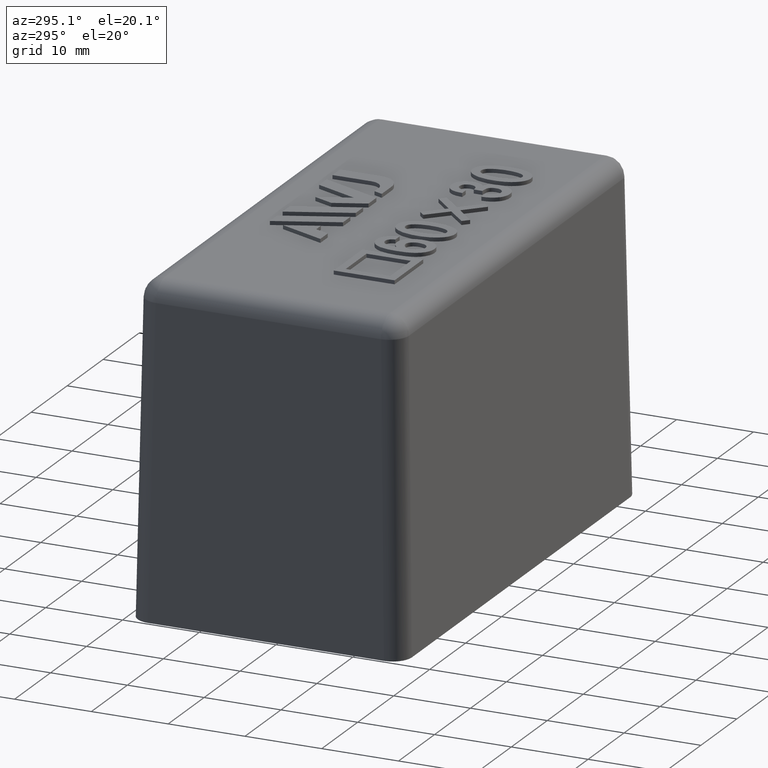
[diagram: clean part render]
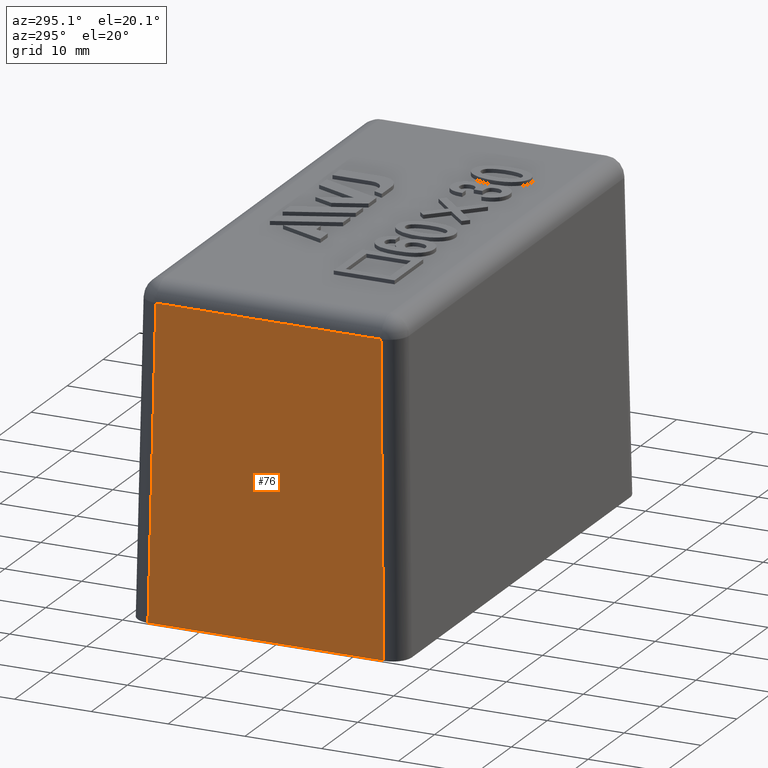
[diagram: same view with one face highlighted and labeled with its STEP entity id]
A machine part, auxiliary view. The second image highlights one B-rep face of the part: STEP entity #76.
In plain terms, the highlighted planar face has unit normal (-0.9998, 0, 0.0175).
Its self-contained STEP definition (entity closure, byte-faithful):
#76 = ADVANCED_FACE( '', ( #197 ), #198, .T. );
#197 = FACE_OUTER_BOUND( '', #433, .T. );
#198 = PLANE( '', #434 );
#433 = EDGE_LOOP( '', ( #735, #736, #737, #738 ) );
#434 = AXIS2_PLACEMENT_3D( '', #739, #740, #741 );
#735 = ORIENTED_EDGE( '', *, *, #1688, .T. );
#736 = ORIENTED_EDGE( '', *, *, #1689, .T. );
#737 = ORIENTED_EDGE( '', *, *, #1690, .T. );
#738 = ORIENTED_EDGE( '', *, *, #1691, .T. );
#739 = CARTESIAN_POINT( '', ( -32.5000000000000, -17.5000000000000, 20.0000000000000 ) );
#740 = DIRECTION( '', ( -0.999847695156391, 0.000000000000000, 0.0174524064372835 ) );
#741 = DIRECTION( '', ( 0.0174524064372835, 0.000000000000000, 0.999847695156391 ) );
#1688 = EDGE_CURVE( '', #2000, #2001, #2002, .F. );
#1689 = EDGE_CURVE( '', #2001, #2003, #2004, .T. );
#1690 = EDGE_CURVE( '', #2003, #2005, #2006, .F. );
#1691 = EDGE_CURVE( '', #2005, #2000, #2007, .F. );
#2000 = VERTEX_POINT( '', #2586 );
#2001 = VERTEX_POINT( '', #2587 );
#2002 = LINE( '', #2588, #2589 );
#2003 = VERTEX_POINT( '', #2590 );
#2004 = LINE( '', #2591, #2592 );
#2005 = VERTEX_POINT( '', #2593 );
#2006 = LINE( '', #2594, #2595 );
#2007 = LINE( '', #2596, #2597 );
#2586 = CARTESIAN_POINT( '', ( -32.8491012985643, 15.3494820606734, 6.93889390390723E-015 ) );
#2587 = CARTESIAN_POINT( '', ( -32.8491012985643, -15.3494820606734, 6.93889390390723E-015 ) );
#2588 = CARTESIAN_POINT( '', ( -32.8491012985643, -17.5000000000000, 6.93889390390723E-015 ) );
#2589 = VECTOR( '', #3282, 1000.00000000000 );
#2590 = CARTESIAN_POINT( '', ( -32.1501371192169, -14.6505178813259, 40.0436310160932 ) );
#2591 = CARTESIAN_POINT( '', ( -32.5007611184247, -15.0011418805338, 19.9563955546498 ) );
#2592 = VECTOR( '', #3283, 1000.00000000000 );
#2593 = CARTESIAN_POINT( '', ( -32.1501371192169, 14.6505178813259, 40.0436310160932 ) );
#2594 = CARTESIAN_POINT( '', ( -32.1501371192169, 17.1072610391151, 40.0436310160932 ) );
#2595 = VECTOR( '', #3284, 1000.00000000000 );
#2596 = CARTESIAN_POINT( '', ( -32.4901038373228, 14.9904845994318, 20.5669507800703 ) );
#2597 = VECTOR( '', #3285, 1000.00000000000 );
#3282 = DIRECTION( '', ( 0.000000000000000, 1.00000000000000, 0.000000000000000 ) );
#3283 = DIRECTION( '', ( 0.0174497491606827, 0.0174497491606827, 0.999695459881887 ) );
#3284 = DIRECTION( '', ( 0.000000000000000, -1.00000000000000, 0.000000000000000 ) );
#3285 = DIRECTION( '', ( 0.0174497491606827, -0.0174497491606827, 0.999695459881887 ) );